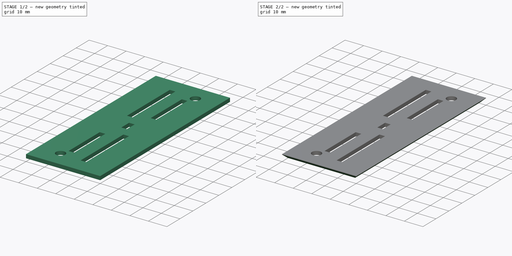
[diagram: build sequence overview — one tinted view per stage of 2, left to right]
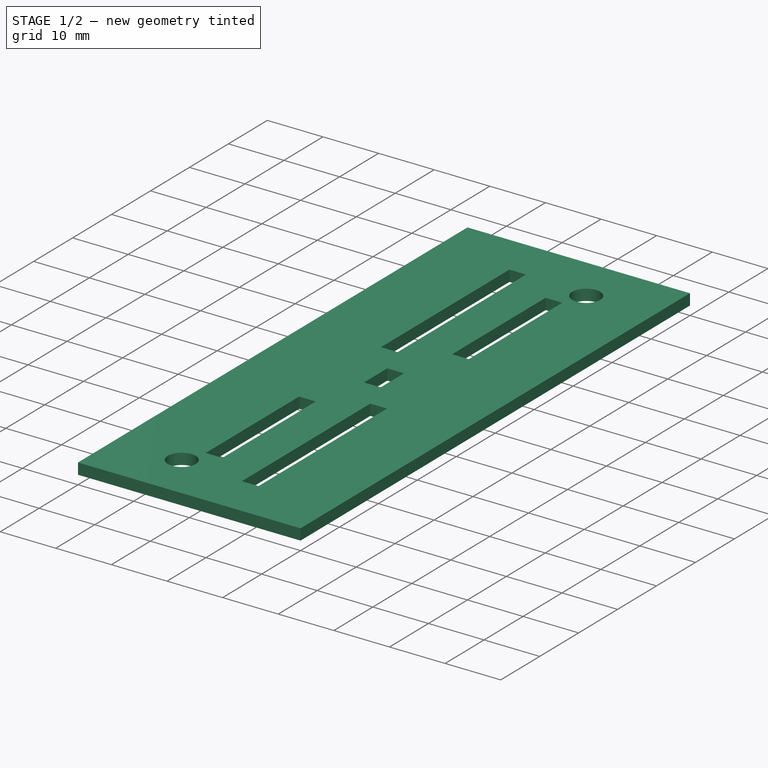
[diagram: stage 1 of 2 — iso view after this stage's code; geometry added in this stage tinted green]
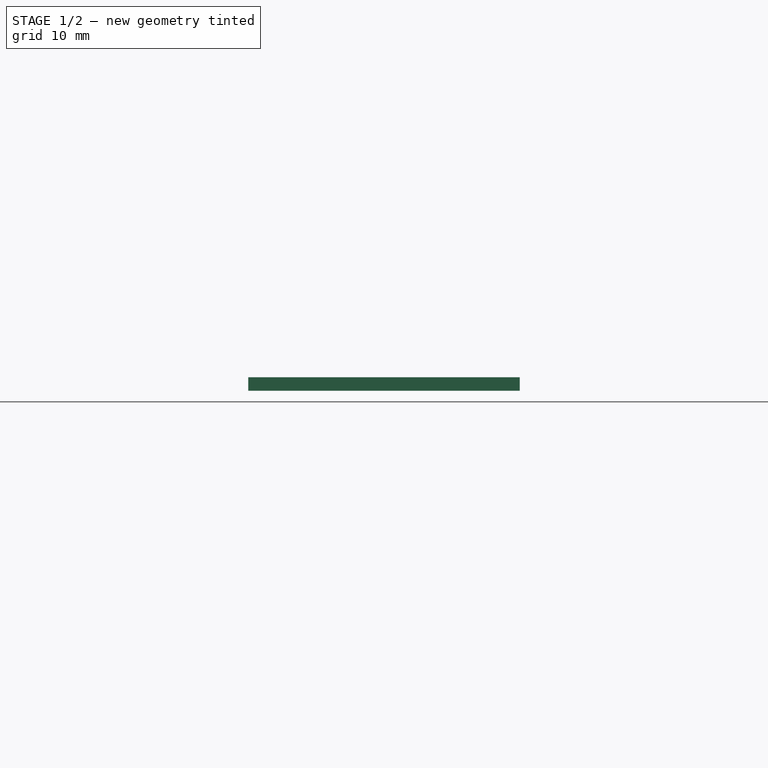
[diagram: stage 1 of 2 — front view after this stage's code; geometry added in this stage tinted green]
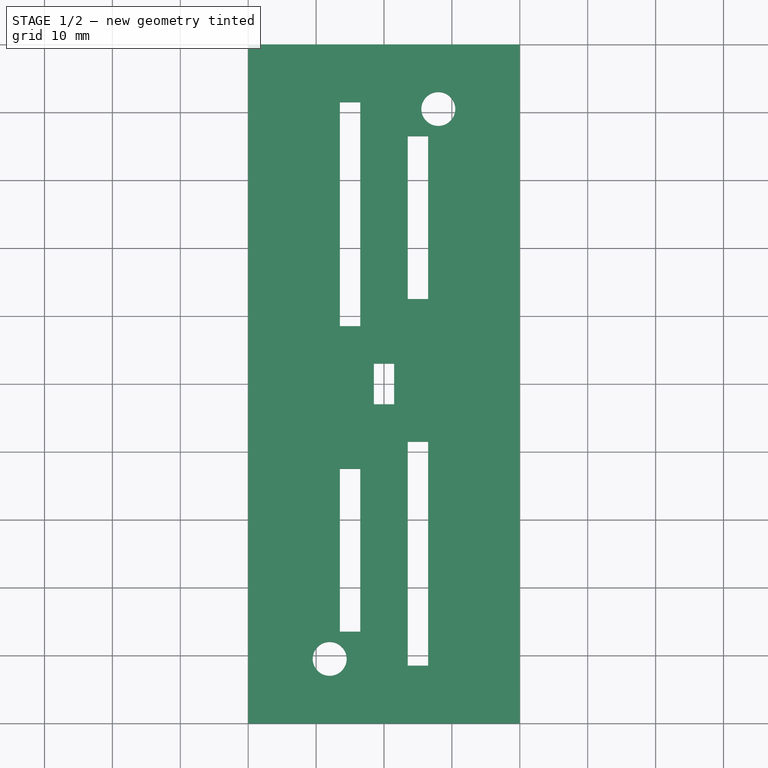
[diagram: stage 1 of 2 — top view after this stage's code; geometry added in this stage tinted green]
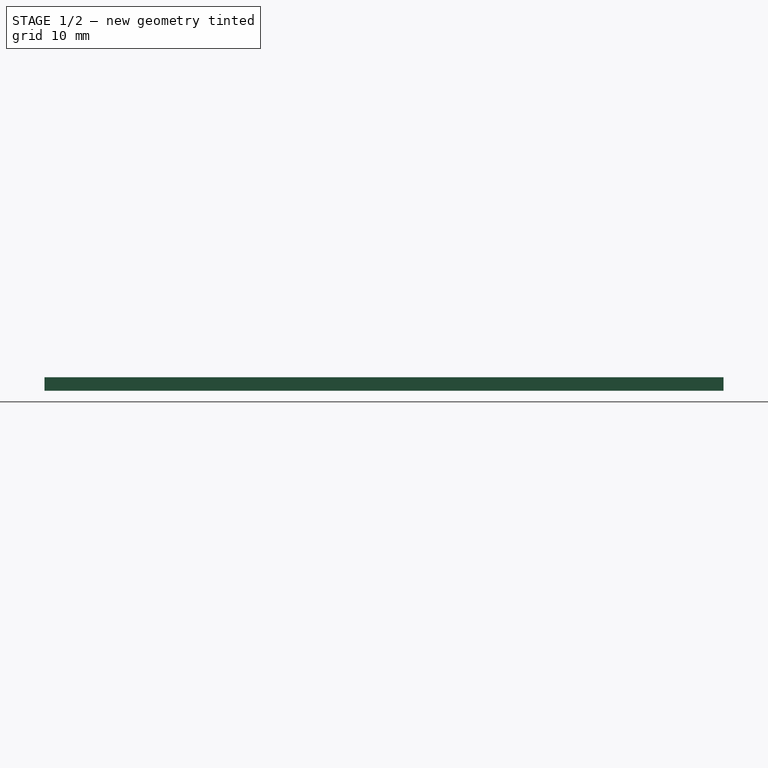
[diagram: stage 1 of 2 — right view after this stage's code; geometry added in this stage tinted green]
FCSTD DOCUMENT  (FreeCAD 0.20R29177 +426 (Git))
Label: kgm_plate
License: All rights reserved
LicenseURL: http://en.wikipedia.org/wiki/All_rights_reserved
objects: Sketcher::SketchObject×1, PartDesign::Pad×1, PartDesign::Chamfer×1, PartDesign::Body×1
note: 6 computed .brp shape members not serialized (recipe doc carries the construction recipe); baked Part::Feature solids carry a one-line shape summary decoded from their .brp

FEATURE [Sketcher::SketchObject] Sketch
  FullyConstrained = false
  MapMode = 5
  Support = -> [XY_Plane]
  sketch-geometry (30):
    g0: LineSegment StartX=-20 StartY=50 StartZ=0 EndX=20 EndY=50 EndZ=0
    g1: LineSegment StartX=20 StartY=50 StartZ=0 EndX=20 EndY=-50 EndZ=0
    g2: LineSegment StartX=20 StartY=-50 StartZ=0 EndX=-20 EndY=-50 EndZ=0
    g3: LineSegment StartX=-20 StartY=-50 StartZ=0 EndX=-20 EndY=50 EndZ=0
    g4: LineSegment StartX=-6.5 StartY=41.5 StartZ=0 EndX=-3.5 EndY=41.5 EndZ=0
    g5: LineSegment StartX=-3.5 StartY=41.5 StartZ=0 EndX=-3.5 EndY=8.5 EndZ=0
    g6: LineSegment StartX=-3.5 StartY=8.5 StartZ=0 EndX=-6.5 EndY=8.5 EndZ=0
    g7: LineSegment StartX=-6.5 StartY=8.5 StartZ=0 EndX=-6.5 EndY=41.5 EndZ=0
    g8: LineSegment StartX=6.5 StartY=-41.5 StartZ=0 EndX=3.5 EndY=-41.5 EndZ=0
    g9: LineSegment StartX=3.5 StartY=-41.5 StartZ=0 EndX=3.5 EndY=-8.5 EndZ=0
    g10: LineSegment StartX=3.5 StartY=-8.5 StartZ=0 EndX=6.5 EndY=-8.5 EndZ=0
    g11: LineSegment StartX=6.5 StartY=-8.5 StartZ=0 EndX=6.5 EndY=-41.5 EndZ=0
    g12: LineSegment StartX=3.5 StartY=12.5 StartZ=0 EndX=6.5 EndY=12.5 EndZ=0
    g13: LineSegment StartX=6.5 StartY=12.5 StartZ=0 EndX=6.5 EndY=36.5 EndZ=0
    g14: LineSegment StartX=6.5 StartY=36.5 StartZ=0 EndX=3.5 EndY=36.5 EndZ=0
    g15: LineSegment StartX=3.5 StartY=36.5 StartZ=0 EndX=3.5 EndY=12.5 EndZ=0
    g16: LineSegment StartX=-6.5 StartY=-12.5 StartZ=0 EndX=-3.5 EndY=-12.5 EndZ=0
    g17: LineSegment StartX=-3.5 StartY=-12.5 StartZ=0 EndX=-3.5 EndY=-36.5 EndZ=0
    g18: LineSegment StartX=-3.5 StartY=-36.5 StartZ=0 EndX=-6.5 EndY=-36.5 EndZ=0
    g19: LineSegment StartX=-6.5 StartY=-36.5 StartZ=0 EndX=-6.5 EndY=-12.5 EndZ=0
    g20: Circle CenterX=-8 CenterY=-40.5 CenterZ=0 NormalX=0 NormalY=0 NormalZ=1 AngleXU=0 Radius=2.5
    g21: Circle CenterX=8 CenterY=40.5 CenterZ=0 NormalX=0 NormalY=0 NormalZ=1 AngleXU=0 Radius=2.5
    g22: LineSegment StartX=-1.5 StartY=3 StartZ=0 EndX=1.5 EndY=3 EndZ=0
    g23: LineSegment StartX=1.5 StartY=3 StartZ=0 EndX=1.5 EndY=-3 EndZ=0
    g24: LineSegment StartX=1.5 StartY=-3 StartZ=0 EndX=-1.5 EndY=-3 EndZ=0
    g25: LineSegment StartX=-1.5 StartY=-3 StartZ=0 EndX=-1.5 EndY=3 EndZ=0
    g26: LineSegment StartX=-12.5 StartY=44.5 StartZ=0 EndX=12.5 EndY=44.5 EndZ=0
    g27: LineSegment StartX=12.5 StartY=44.5 StartZ=0 EndX=12.5 EndY=-44.5 EndZ=0
    g28: LineSegment StartX=12.5 StartY=-44.5 StartZ=0 EndX=-12.5 EndY=-44.5 EndZ=0
    g29: LineSegment StartX=-12.5 StartY=-44.5 StartZ=0 EndX=-12.5 EndY=44.5 EndZ=0
  constraints (86):
    c: Coincident(g0,g1)
    c: Coincident(g1,g2)
    c: Coincident(g2,g3)
    c: Coincident(g3,g0)
    c: Horizontal(g0)
    c: Horizontal(g2)
    c: Vertical(g1)
    c: Vertical(g3)
    c: Coincident(g4,g5)
    c: Coincident(g5,g6)
    c: Coincident(g6,g7)
    c: Coincident(g7,g4)
    c: Horizontal(g4)
    c: Horizontal(g6)
    c: Vertical(g5)
    c: Vertical(g7)
    c: Coincident(g8,g9)
    c: Coincident(g9,g10)
    c: Coincident(g10,g11)
    c: Coincident(g11,g8)
    c: Horizontal(g8)
    c: Horizontal(g10)
    c: Vertical(g9)
    c: Vertical(g11)
    c: Coincident(g12,g13)
    c: Coincident(g13,g14)
    c: Coincident(g14,g15)
    c: Coincident(g15,g12)
    c: Horizontal(g12)
    c: Horizontal(g14)
    c: Vertical(g13)
    c: Vertical(g15)
    c: Coincident(g16,g17)
    c: Coincident(g17,g18)
    c: Coincident(g18,g19)
    c: Coincident(g19,g16)
    c: Horizontal(g16)
    c: Horizontal(g18)
    c: Vertical(g17)
    c: Vertical(g19)
    c: Coincident(g22,g23)
    c: Coincident(g23,g24)
    c: Coincident(g24,g25)
    c: Coincident(g25,g22)
    c: Horizontal(g22)
    c: Horizontal(g24)
    c: Vertical(g23)
    c: Vertical(g25)
    c: Coincident(g26,g27)
    c: Coincident(g27,g28)
    c: Coincident(g28,g29)
    c: Coincident(g29,g26)
    c: Horizontal(g26)
    c: Horizontal(g28)
    c: Vertical(g27)
    c: Vertical(g29)
    c: DistanceX(g28,g28) = 25
    c: DistanceY(g28,g26) = 89
    c: DistanceY(g-1,g26) = 44.5
    c: DistanceX(g28,g-1) = 12.5
    c: DistanceX(g22,g22) = 3
    c: DistanceX(g22,g-1) = 1.5
    c: DistanceY(g23,g23) = 6
    c: DistanceY(g23,g-1) = 3
    c: Diameter(g21) = 5
    c: Diameter(g20) = 5
    c: DistanceX(g21,g26) = 4.5
    c: DistanceX(g20,g28) = -4.5
    c: DistanceY(g20,g28) = -4
    c: DistanceY(g26,g21) = -4
    c: DistanceX(g26,g13) = -6
    c: DistanceX(g14,g26) = 9
    c: DistanceX(g4,g26) = -6
    c: DistanceX(g26,g4) = 9
    c: DistanceX(g28,g18) = 6
    c: DistanceX(g28,g17) = 9
    c: DistanceX(g8,g27) = 9
    c: DistanceX(g27,g8) = -6
    c: DistanceY(g13,g26) = 8
    c: DistanceY(g12,g26) = 32
    c: DistanceY(g26,g4) = -3
    c: DistanceY(g6,g26) = 36
    c: DistanceY(g8,g27) = -3
    c: DistanceY(g27,g10) = 36
    c: DistanceY(g28,g18) = 8
    c: DistanceY(g28,g16) = 32
FEATURE [PartDesign::Pad] Pad
  Direction = (0,0,1)
  Length = 2
  Length2 = 10
  Profile = -> Sketch
  ReferenceAxis = -> Sketch [N_Axis]
  Type = 0
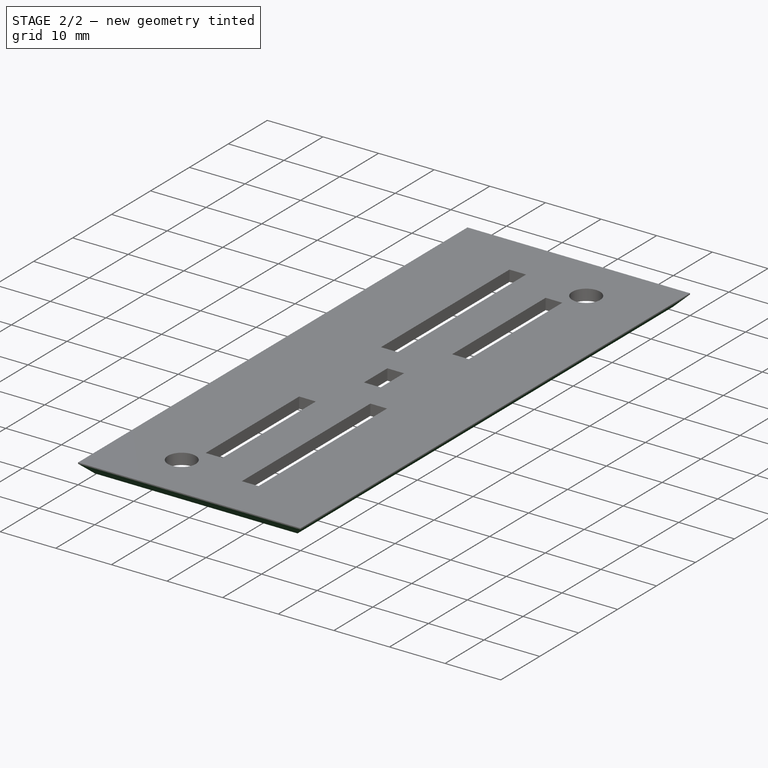
[diagram: stage 2 of 2 — iso view after this stage's code; geometry added in this stage tinted green]
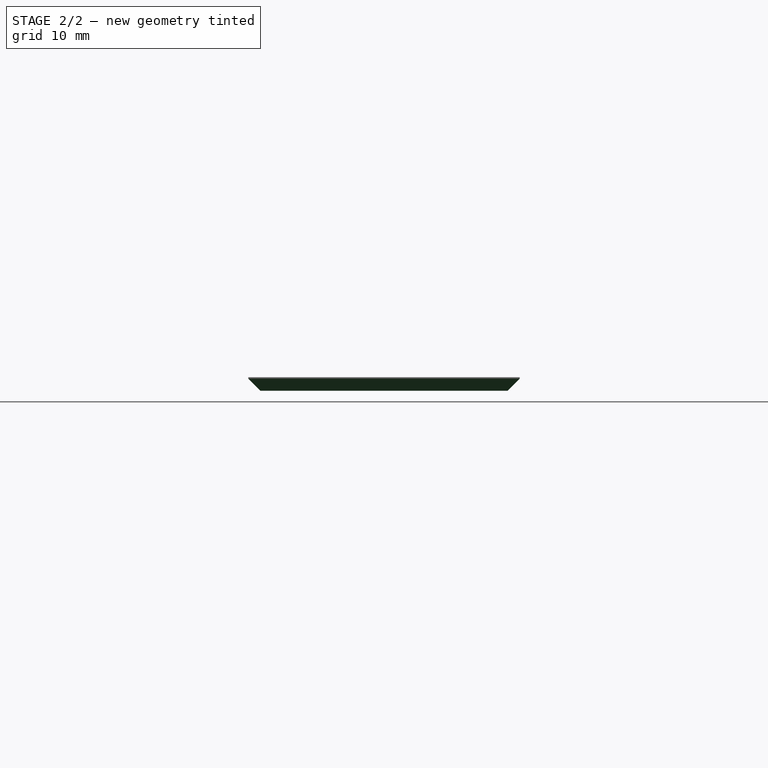
[diagram: stage 2 of 2 — front view after this stage's code; geometry added in this stage tinted green]
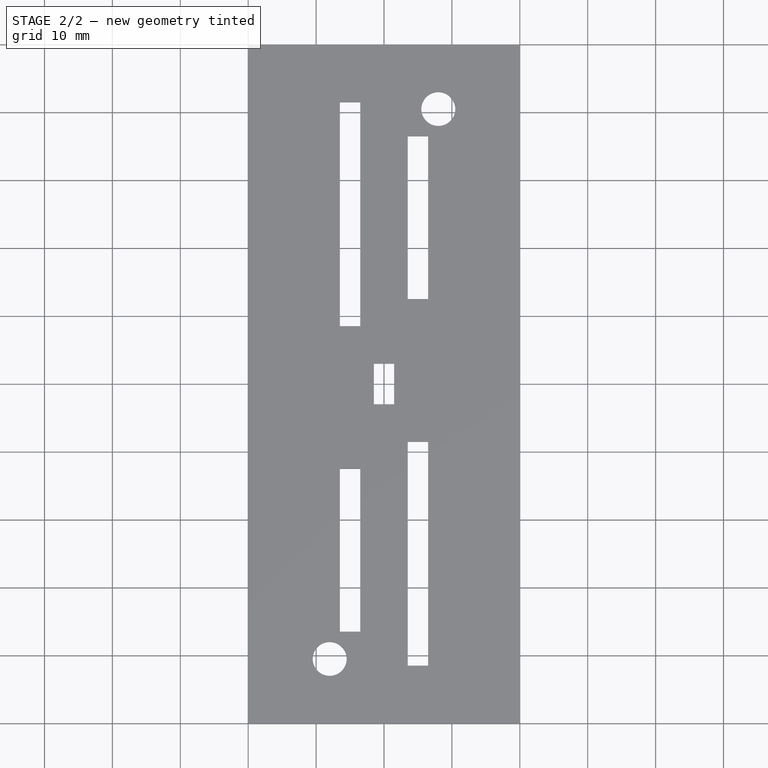
[diagram: stage 2 of 2 — top view after this stage's code; geometry added in this stage tinted green]
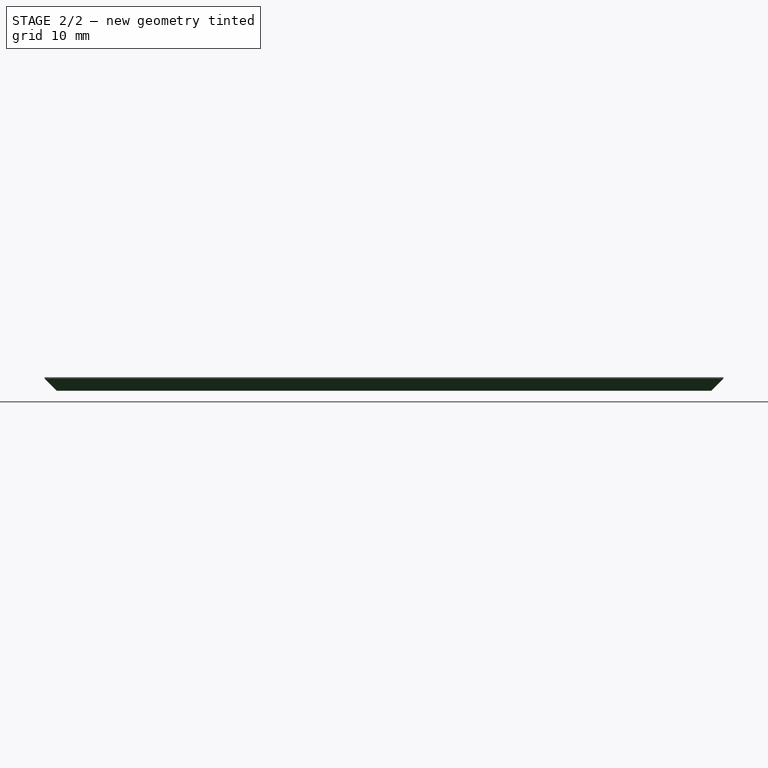
[diagram: stage 2 of 2 — right view after this stage's code; geometry added in this stage tinted green]
FEATURE [PartDesign::Chamfer] Chamfer
  Angle = 45
  Base = -> Pad [Edge9,Edge6,Edge3,Edge11]
  BaseFeature = -> Pad
  ChamferType = 0
  FlipDirection = false
  Size = 1.8
  Size2 = 1
  SupportTransform = false
  UseAllEdges = false
FEATURE [PartDesign::Body] Body
  Group = -> [Sketch,Pad,Chamfer]
  Origin = -> Origin
  Tip = -> Chamfer
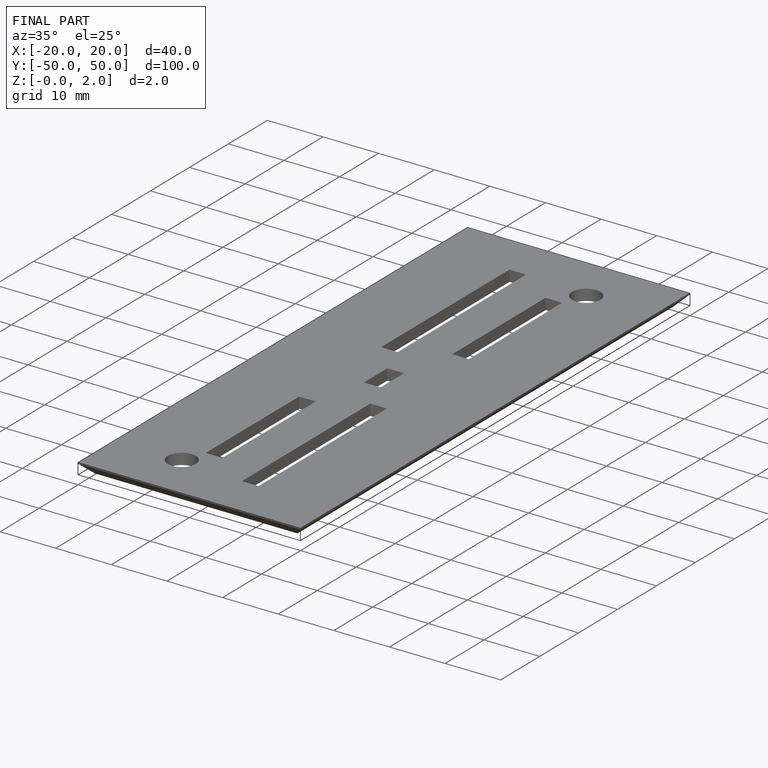
[diagram: finished part — iso view with bounding-box wireframe]
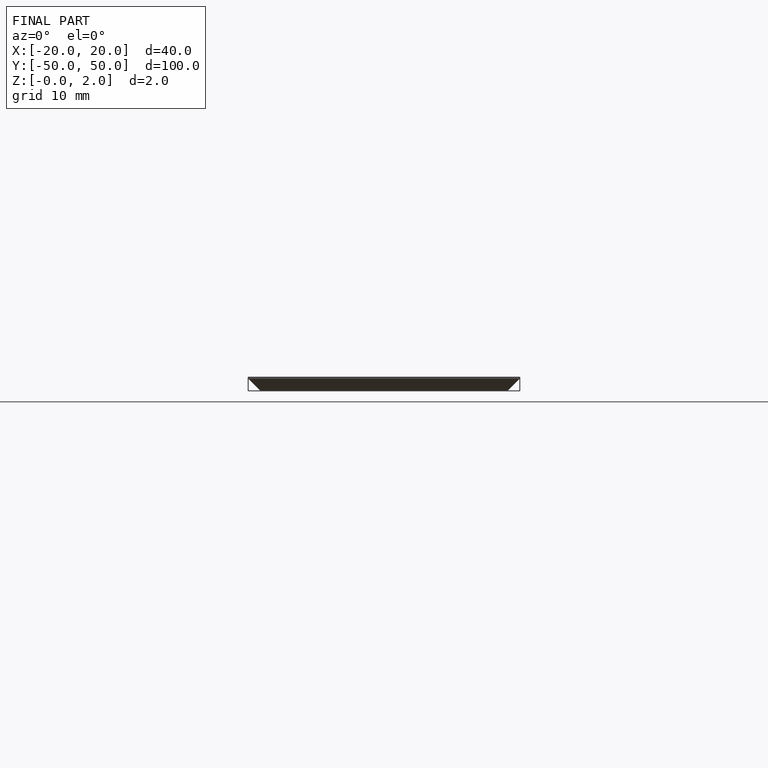
[diagram: finished part — front view with bounding-box wireframe]
